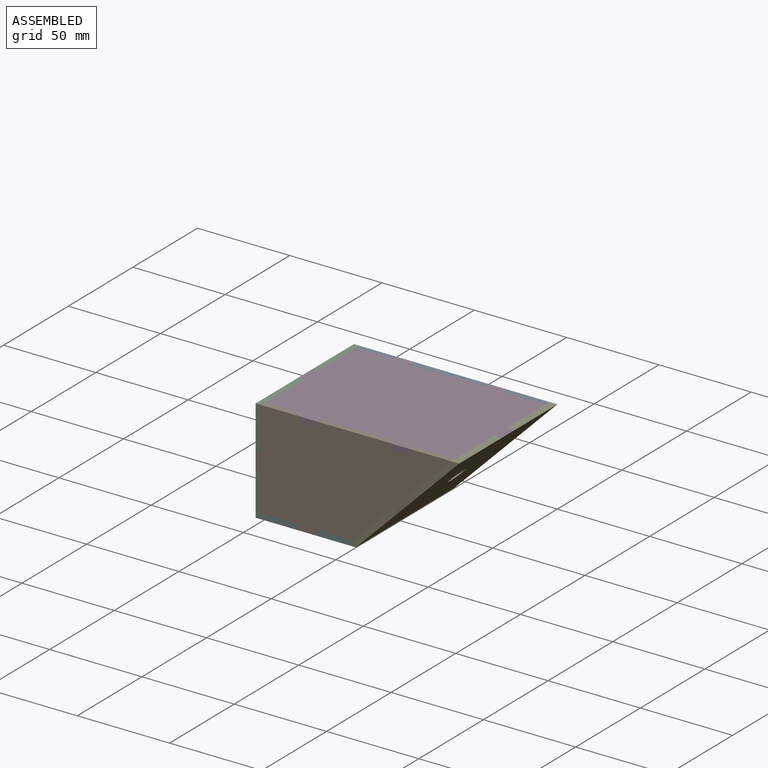
[diagram: assembled view]
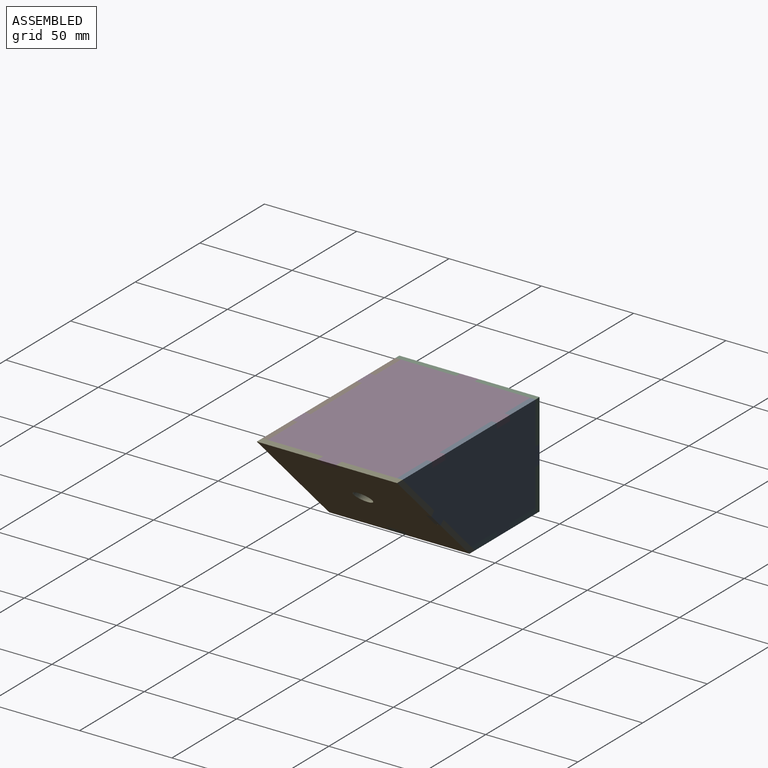
[diagram: assembled view, second angle]
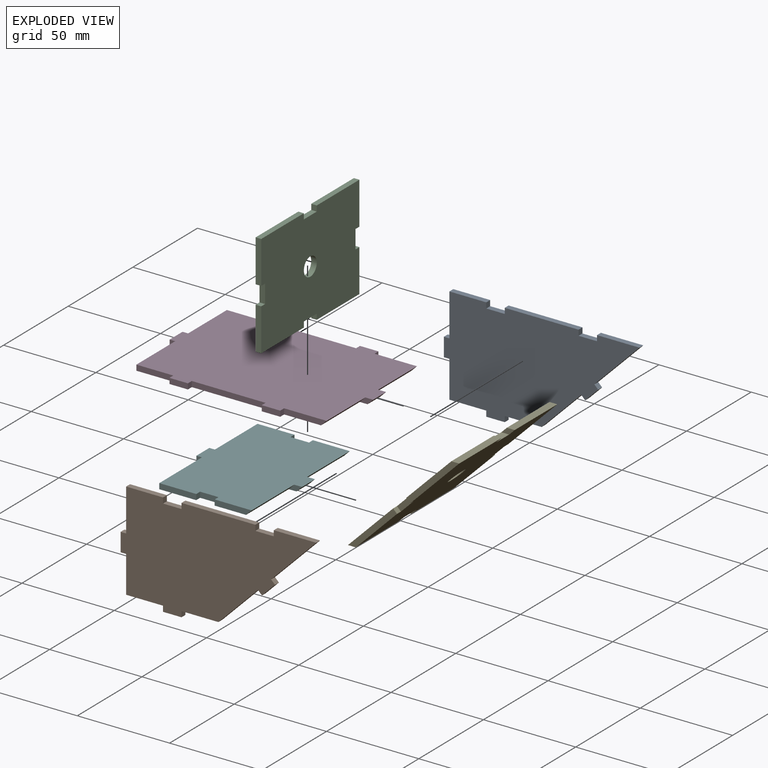
[diagram: exploded view]
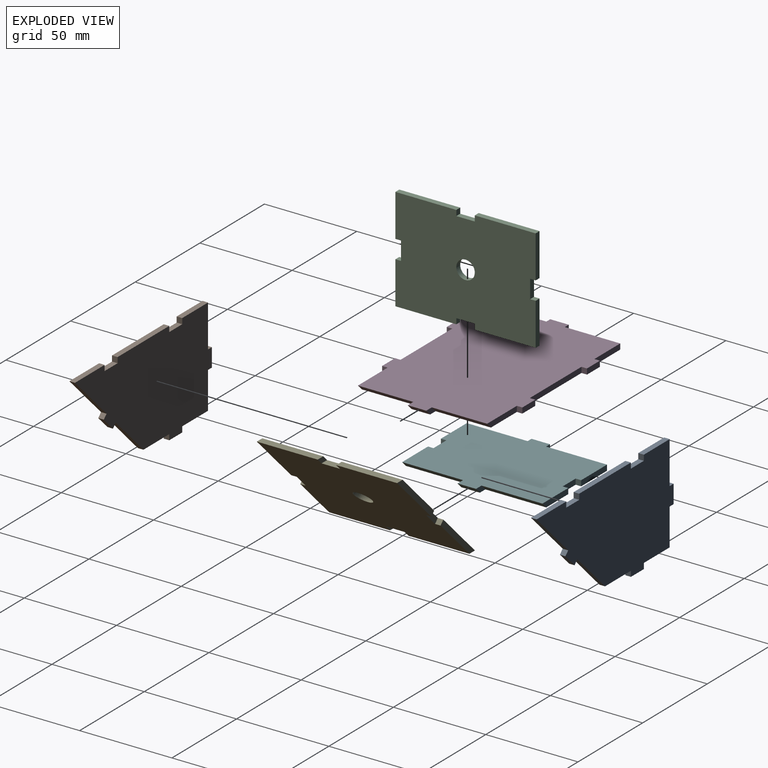
[diagram: exploded view, second angle]
ASSEMBLY  parts=6 mates=5
PART A: 26 faces, bbox 106x3x56 mm
  f0: plane 3x3mm, normal (0,0,1), area 9mm2, adj f1,f23,f24,f25
  f1: plane 10x3mm, normal (-1,0,0), area 30mm2, adj f0,f2,f24,f25
  f2: plane 3x3mm, normal (0,0,-1), area 9mm2, adj f1,f3,f24,f25
  f3: plane 20x3mm, normal (-1,0,0), area 60mm2, adj f2,f4,f24,f25
  f4: plane 20x3mm, normal (0,0,-1), area 60mm2, adj f3,f5,f24,f25
  f5: plane 3x3mm, normal (-1,0,0), area 9mm2, adj f4,f6,f24,f25
  f6: plane 10x3mm, normal (0,0,-1), area 30mm2, adj f5,f7,f24,f25
  f7: plane 3x3mm, normal (1,0,0), area 9mm2, adj f6,f8,f24,f25
  f8: plane 20x3mm, normal (0,0,-1), area 60mm2, adj f7,f9,f24,f25
  f9: plane 21.46x21.46mm, normal (0.71,0,-0.71), area 91.1mm2, adj f8,f10,f24,f25
  f10: plane 3x2.12mm, normal (-0.71,0,-0.71), area 9mm2, adj f9,f11,f24,f25
  f11: plane 7.07x7.07mm, normal (0.71,0,-0.71), area 30mm2, adj f10,f12,f24,f25
  f12: plane 3x2.12mm, normal (0.71,0,0.71), area 9mm2, adj f11,f13,f24,f25
  f13: plane 24.46x24.46mm, normal (0.71,0,-0.71), area 103.8mm2, adj f12,f14,f24,f25
  f14: plane 23x3mm, normal (0,0,1), area 69mm2, adj f13,f15,f24,f25
  f15: plane 3x3mm, normal (-1,0,0), area 9mm2, adj f14,f16,f24,f25
  f16: plane 10x3mm, normal (0,0,1), area 30mm2, adj f15,f17,f24,f25
  f17: plane 3x3mm, normal (1,0,0), area 9mm2, adj f16,f18,f24,f25
  f18: plane 40x3mm, normal (0,0,1), area 120mm2, adj f17,f19,f24,f25
  f19: plane 3x3mm, normal (-1,0,0), area 9mm2, adj f18,f20,f24,f25
  f20: plane 10x3mm, normal (0,0,1), area 30mm2, adj f19,f21,f24,f25
  f21: plane 3x3mm, normal (1,0,0), area 9mm2, adj f20,f22,f24,f25
  f22: plane 20x3mm, normal (0,0,1), area 60mm2, adj f21,f23,f24,f25
  f23: plane 23x3mm, normal (-1,0,0), area 69mm2, adj f0,f22,f24,f25
  f24: plane 106x56mm, normal (0,-1,0), area 4084.5mm2, adj f0,f1,f2,f3,f4,f5,f6,f7
  f25: plane 106x56mm, normal (0,1,0), area 4084.5mm2, adj f0,f1,f2,f3,f4,f5,f6,f7
PART B: same geometry as A
PART C: 23 faces, bbox 3x76x56 mm
  f0: plane 33x3mm, normal (0,0,1), area 99mm2, adj f1,f19,f21,f22
  f1: plane 3x3mm, normal (0,-1,0), area 9mm2, adj f0,f2,f21,f22
  f2: plane 10x3mm, normal (0,0,1), area 30mm2, adj f1,f3,f21,f22
  f3: plane 3x3mm, normal (0,1,0), area 9mm2, adj f2,f4,f21,f22
  f4: plane 33x3mm, normal (0,0,1), area 99mm2, adj f3,f5,f21,f22
  f5: plane 23x3mm, normal (0,-1,0), area 69mm2, adj f4,f6,f21,f22
  f6: plane 3x3mm, normal (0,0,-1), area 9mm2, adj f5,f7,f21,f22
  f7: plane 10x3mm, normal (0,-1,0), area 30mm2, adj f6,f8,f21,f22
  f8: plane 3x3mm, normal (0,0,1), area 9mm2, adj f7,f9,f21,f22
  f9: plane 23x3mm, normal (0,-1,0), area 69mm2, adj f8,f10,f21,f22
  f10: plane 33x3mm, normal (0,0,-1), area 99mm2, adj f9,f11,f21,f22
  f11: plane 3x3mm, normal (0,1,0), area 9mm2, adj f10,f12,f21,f22
  f12: plane 10x3mm, normal (0,0,-1), area 30mm2, adj f11,f13,f21,f22
  f13: plane 3x3mm, normal (0,-1,0), area 9mm2, adj f12,f14,f21,f22
  f14: plane 33x3mm, normal (0,0,-1), area 99mm2, adj f13,f15,f21,f22
  f15: plane 23x3mm, normal (0,1,0), area 69mm2, adj f14,f16,f21,f22
  f16: plane 3x3mm, normal (0,0,1), area 9mm2, adj f15,f17,f21,f22
  f17: plane 10x3mm, normal (0,1,0), area 30mm2, adj f16,f18,f21,f22
  f18: plane 3x3mm, normal (0,0,-1), area 9mm2, adj f17,f19,f21,f22
  f19: plane 23x3mm, normal (0,1,0), area 69mm2, adj f0,f18,f21,f22
  f20: cylinder r=5mm len=10mm, axis (-1,0,0), area 94.2mm2, adj f21,f22
  f21: plane 76x56mm, normal (1,0,0), area 4057.5mm2, adj f0,f1,f2,f3,f4,f5,f6,f7
  f22: plane 76x56mm, normal (-1,0,0), area 4057.5mm2, adj f0,f1,f2,f3,f4,f5,f6,f7
PART D: 30 faces, bbox 110.2x76x3 mm
  f0: plane 10x3mm, normal (-1,0,0), area 30mm2, adj f1,f24,f25,f26
  f1: plane 3x3mm, normal (0,-1,0), area 9mm2, adj f0,f2,f25,f26
  f2: plane 30x3mm, normal (-1,0,0), area 90mm2, adj f1,f3,f25,f26
  f3: plane 20x3mm, normal (0,-1,0), area 60mm2, adj f2,f4,f25,f26
  f4: plane 3x3mm, normal (-1,0,0), area 9mm2, adj f3,f5,f25,f26
  f5: plane 10x3mm, normal (0,-1,0), area 30mm2, adj f4,f6,f25,f26
  f6: plane 3x3mm, normal (1,0,0), area 9mm2, adj f5,f7,f25,f26
  f7: plane 40x3mm, normal (0,-1,0), area 120mm2, adj f6,f8,f25,f26
  f8: plane 3x3mm, normal (-1,0,0), area 9mm2, adj f7,f9,f25,f26
  f9: plane 10x3mm, normal (0,-1,0), area 30mm2, adj f8,f10,f25,f26
  f10: plane 3x3mm, normal (1,0,0), area 9mm2, adj f9,f11,f25,f26
  f11: plane 23x3mm, normal (0,-1,0), area 64.5mm2, adj f10,f25,f26,f29
  f12: plane 7.24x3mm, normal (0,-1,0), area 12.7mm2, adj f25,f26,f28,f29
  f13: plane 7.24x3mm, normal (0,1,0), area 12.7mm2, adj f25,f26,f27,f28
  f14: plane 23x3mm, normal (0,1,0), area 64.5mm2, adj f15,f25,f26,f27
  f15: plane 3x3mm, normal (1,0,0), area 9mm2, adj f14,f16,f25,f26
  f16: plane 10x3mm, normal (0,1,0), area 30mm2, adj f15,f17,f25,f26
  f17: plane 3x3mm, normal (-1,0,0), area 9mm2, adj f16,f18,f25,f26
  f18: plane 40x3mm, normal (0,1,0), area 120mm2, adj f17,f19,f25,f26
  f19: plane 3x3mm, normal (1,0,0), area 9mm2, adj f18,f20,f25,f26
  f20: plane 10x3mm, normal (0,1,0), area 30mm2, adj f19,f21,f25,f26
  f21: plane 3x3mm, normal (-1,0,0), area 9mm2, adj f20,f22,f25,f26
  f22: plane 20x3mm, normal (0,1,0), area 60mm2, adj f21,f23,f25,f26
  f23: plane 30x3mm, normal (-1,0,0), area 90mm2, adj f22,f24,f25,f26
  f24: plane 3x3mm, normal (0,1,0), area 9mm2, adj f0,f23,f25,f26
  f25: plane 110.24x76mm, normal (0,0,1), area 7402.4mm2, adj f0,f1,f2,f3,f4,f5,f6,f7
  f26: plane 107.24x76mm, normal (0,0,-1), area 7192.4mm2, adj f0,f1,f2,f3,f4,f5,f6,f7
  f27: plane 30x3mm, normal (0.71,0,-0.71), area 127.3mm2, adj f13,f14,f25,f26
  f28: plane 10x3mm, normal (0.71,0,-0.71), area 42.4mm2, adj f12,f13,f25,f26
  f29: plane 30x3mm, normal (0.71,0,-0.71), area 127.3mm2, adj f11,f12,f25,f26
PART E: 23 faces, bbox 76x3x82.2 mm
  f0: plane 10x3mm, normal (1,0,0), area 30mm2, adj f1,f14,f15,f16
  f1: plane 3x3mm, normal (0,0,-1), area 9mm2, adj f0,f2,f15,f16
  f2: plane 34.6x3mm, normal (1,0,0), area 99.3mm2, adj f1,f15,f16,f17
  f3: plane 7.24x3mm, normal (-1,0,0), area 12.7mm2, adj f15,f16,f17,f18
  f4: plane 7.24x3mm, normal (1,0,0), area 12.7mm2, adj f15,f16,f18,f19
  f5: plane 34.6x3mm, normal (-1,0,0), area 99.3mm2, adj f6,f15,f16,f19
  f6: plane 3x3mm, normal (0,0,-1), area 9mm2, adj f5,f7,f15,f16
  f7: plane 10x3mm, normal (-1,0,0), area 30mm2, adj f6,f8,f15,f16
  f8: plane 3x3mm, normal (0,0,1), area 9mm2, adj f7,f9,f15,f16
  f9: plane 37.6x3mm, normal (-1,0,0), area 108.3mm2, adj f8,f15,f16,f22
  f10: plane 7.24x3mm, normal (1,0,0), area 12.7mm2, adj f15,f16,f21,f22
  f11: plane 7.24x3mm, normal (-1,0,0), area 12.7mm2, adj f15,f16,f20,f21
  f12: plane 37.6x3mm, normal (1,0,0), area 108.3mm2, adj f14,f15,f16,f20
  f13: cylinder r=5mm len=10mm, axis (0,1,0), area 94.2mm2, adj f15,f16
  f14: plane 3x3mm, normal (0,0,1), area 9mm2, adj f0,f12,f15,f16
  f15: plane 79.2x76mm, normal (0,-1,0), area 5795.5mm2, adj f0,f1,f2,f3,f4,f5,f6,f7
  f16: plane 79.2x76mm, normal (0,1,0), area 5795.5mm2, adj f0,f1,f2,f3,f4,f5,f6,f7
  f17: plane 33x3mm, normal (0,0.71,0.71), area 140mm2, adj f2,f3,f15,f16
  f18: plane 10x3mm, normal (0,0.71,0.71), area 42.4mm2, adj f3,f4,f15,f16
  f19: plane 33x3mm, normal (0,0.71,0.71), area 140mm2, adj f4,f5,f15,f16
  f20: plane 33x3mm, normal (0,-0.71,-0.71), area 140mm2, adj f11,f12,f15,f16
  f21: plane 10x3mm, normal (0,-0.71,-0.71), area 42.4mm2, adj f10,f11,f15,f16
  f22: plane 33x3mm, normal (0,-0.71,-0.71), area 140mm2, adj f9,f10,f15,f16
PART F: 22 faces, bbox 57.2x3x76 mm
  f0: plane 3x3mm, normal (0,0,-1), area 9mm2, adj f1,f16,f17,f18
  f1: plane 33x3mm, normal (-1,0,0), area 99mm2, adj f0,f2,f17,f18
  f2: plane 20x3mm, normal (0,0,-1), area 60mm2, adj f1,f3,f17,f18
  f3: plane 3x3mm, normal (1,0,0), area 9mm2, adj f2,f4,f17,f18
  f4: plane 10x3mm, normal (0,0,-1), area 30mm2, adj f3,f5,f17,f18
  f5: plane 3x3mm, normal (-1,0,0), area 9mm2, adj f4,f6,f17,f18
  f6: plane 20x3mm, normal (0,0,-1), area 55.5mm2, adj f5,f17,f18,f19
  f7: plane 7.24x3mm, normal (0,0,-1), area 12.7mm2, adj f17,f18,f19,f20
  f8: plane 7.24x3mm, normal (0,0,1), area 12.7mm2, adj f17,f18,f20,f21
  f9: plane 20x3mm, normal (0,0,1), area 55.5mm2, adj f10,f17,f18,f21
  f10: plane 3x3mm, normal (-1,0,0), area 9mm2, adj f9,f11,f17,f18
  f11: plane 10x3mm, normal (0,0,1), area 30mm2, adj f10,f12,f17,f18
  f12: plane 3x3mm, normal (1,0,0), area 9mm2, adj f11,f13,f17,f18
  f13: plane 20x3mm, normal (0,0,1), area 60mm2, adj f12,f14,f17,f18
  f14: plane 33x3mm, normal (-1,0,0), area 99mm2, adj f13,f15,f17,f18
  f15: plane 3x3mm, normal (0,0,1), area 9mm2, adj f14,f16,f17,f18
  f16: plane 10x3mm, normal (-1,0,0), area 30mm2, adj f0,f15,f17,f18
  f17: plane 76x57.24mm, normal (0,-1,0), area 3812.4mm2, adj f0,f1,f2,f3,f4,f5,f6,f7
  f18: plane 76x54.24mm, normal (0,1,0), area 3584.4mm2, adj f0,f1,f2,f3,f4,f5,f6,f7
  f19: plane 33x3mm, normal (0.71,0.71,0), area 140mm2, adj f6,f7,f17,f18
  f20: plane 10x3mm, normal (0.71,0.71,0), area 42.4mm2, adj f7,f8,f17,f18
  f21: plane 33x3mm, normal (0.71,0.71,0), area 140mm2, adj f8,f9,f17,f18
PLACE A t=(101.26,37.91,-8.56)mm
PLACE B t=(101.26,-35.09,-8.56)mm
PLACE C t=(-1.74,-0.09,0.08)mm fixed
PLACE D t=(51.26,-0.09,25.08)mm
PLACE E rot(axis=(-0.68,-0.68,0.28),148.6deg) t=(78.38,-0.09,-2.04)mm
PLACE F rot(axis=(-1,0,0),90deg) t=(26.26,-0.09,-27.92)mm
MATE planar F.f0 <-> C.f11  axis (0,-1,0) through (-0.24,-5.09,-26.42)mm
MATE planar A.f0 <-> C.f18  axis (0,0,1) through (-0.24,36.41,5.08)mm
MATE planar E.f8 <-> B.f12  axis (-0.71,0,-0.71) through (80.85,-36.59,2.55)mm
MATE planar B.f0 <-> C.f6  axis (0,0,1) through (-0.24,-36.59,5.08)mm
MATE planar D.f24 <-> C.f1  axis (0,1,0) through (-0.24,4.91,26.58)mm
